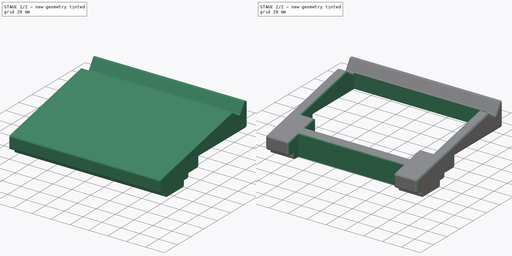
[diagram: build sequence overview — one tinted view per stage of 2, left to right]
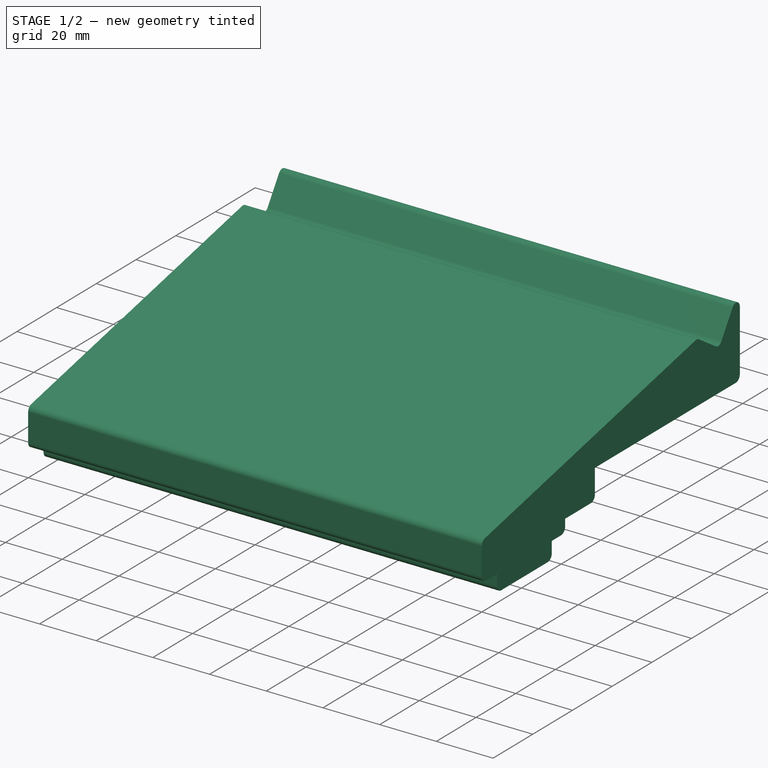
[diagram: stage 1 of 2 — iso view after this stage's code; geometry added in this stage tinted green]
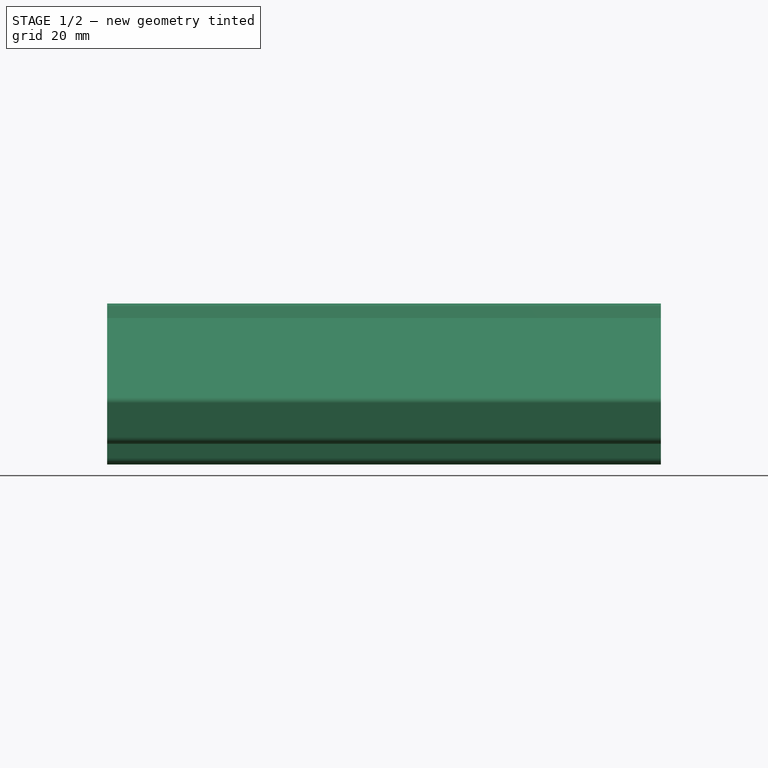
[diagram: stage 1 of 2 — front view after this stage's code; geometry added in this stage tinted green]
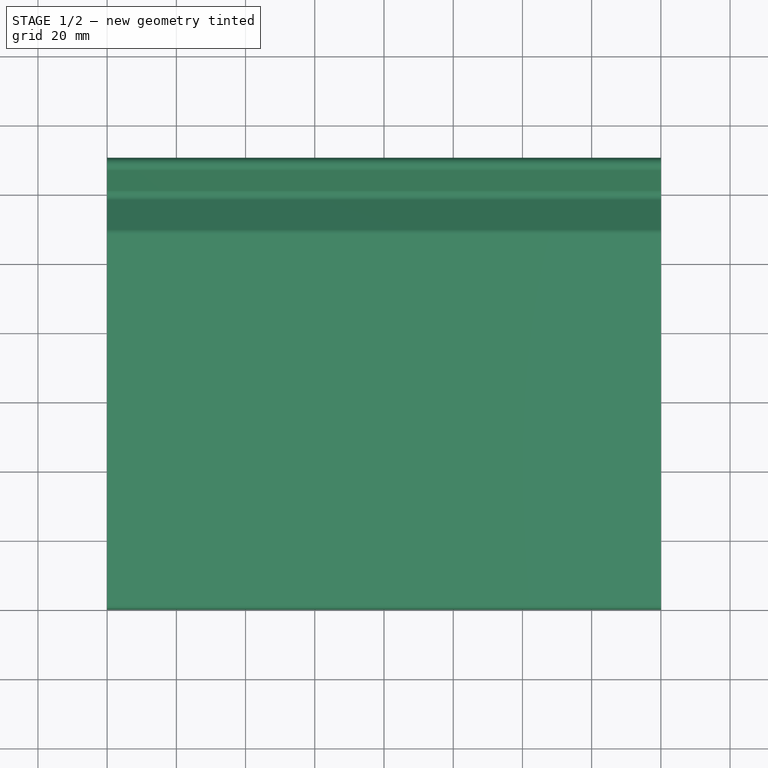
[diagram: stage 1 of 2 — top view after this stage's code; geometry added in this stage tinted green]
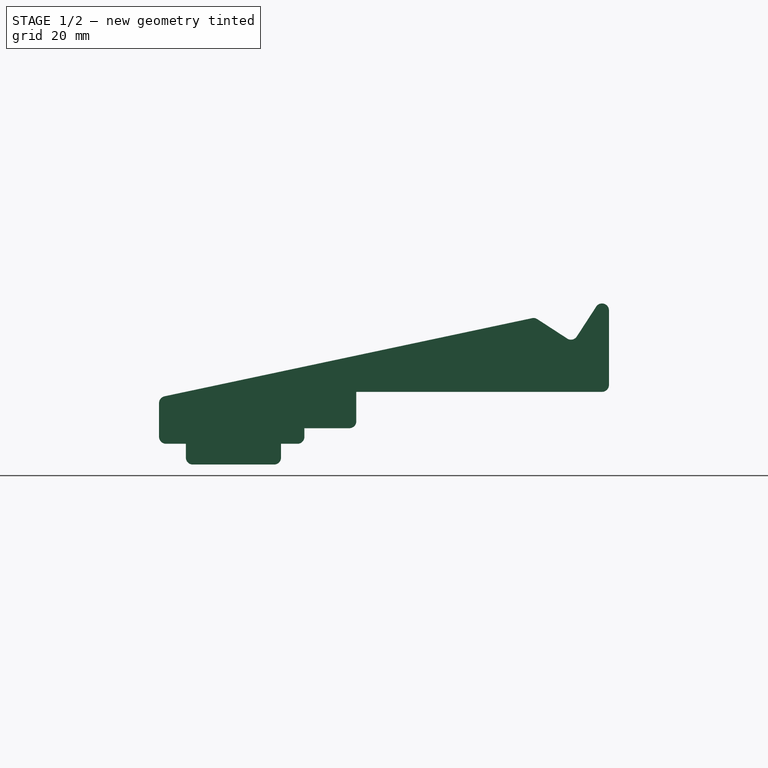
[diagram: stage 1 of 2 — right view after this stage's code; geometry added in this stage tinted green]
FCSTD DOCUMENT  (FreeCAD 0.21R33771 (Git))
Label: KeyboardMiddleSupport
License: All rights reserved
LicenseURL: http://en.wikipedia.org/wiki/All_rights_reserved
objects: Sketcher::SketchObject×2, PartDesign::Fillet×2, PartDesign::Pad×1, PartDesign::Pocket×1, PartDesign::Body×1
note: 11 computed .brp shape members not serialized (recipe doc carries the construction recipe); baked Part::Feature solids carry a one-line shape summary decoded from their .brp

FEATURE [Sketcher::SketchObject] Sketch
  FullyConstrained = true
  MapMode = 5
  Placement = pos=(0,0,0) rot=(0.57735,0.57735,0.57735;2.0944rad)
  Support = -> [YZ_Plane]
  sketch-geometry (17):
    g0: LineSegment StartX=0 StartY=0 StartZ=0 EndX=0 EndY=13.3843 EndZ=0
    g1: LineSegment StartX=130 StartY=38.5468 StartZ=0 EndX=130 EndY=15 EndZ=0
    g2: LineSegment StartX=130 StartY=15 StartZ=0 EndX=57 EndY=15 EndZ=0
    g3: LineSegment StartX=57 StartY=15 StartZ=0 EndX=57 EndY=4.5 EndZ=0
    g4: LineSegment StartX=57 StartY=4.5 StartZ=0 EndX=42 EndY=4.5 EndZ=0
    g5: LineSegment StartX=42 StartY=4.5 StartZ=0 EndX=42 EndY=0 EndZ=0
    g6: LineSegment StartX=42 StartY=0 StartZ=0 EndX=35.25 EndY=0 EndZ=0
    g7: LineSegment StartX=35.25 StartY=0 StartZ=0 EndX=35.25 EndY=-6 EndZ=0
    g8: LineSegment StartX=35.25 StartY=-6 StartZ=0 EndX=7.75 EndY=-6 EndZ=0
    g9: LineSegment StartX=7.75 StartY=-6 StartZ=0 EndX=7.75 EndY=0 EndZ=0
    g10: LineSegment StartX=7.75 StartY=0 StartZ=0 EndX=0 EndY=0 EndZ=0
    g11: LineSegment StartX=0 StartY=13.3843 StartZ=0 EndX=108.604 EndY=36.4687 EndZ=0
    g12: LineSegment StartX=57 StartY=15 StartZ=0 EndX=57 EndY=25.5 EndZ=0
    g13: ArcOfCircle CenterX=128 CenterY=38.5468 CenterZ=0 NormalX=0 NormalY=0 NormalZ=1 AngleXU=0 Radius=2 StartAngle=1e-16 EndAngle=2.56563
    g14: LineSegment StartX=108.604 StartY=36.4687 StartZ=0 EndX=117.942 EndY=30.4039 EndZ=0
    g15: ArcOfCircle CenterX=119.032 CenterY=32.0812 CenterZ=0 NormalX=0 NormalY=0 NormalZ=1 AngleXU=0 Radius=2 StartAngle=4.13643 EndAngle=5.70723
    g16: LineSegment StartX=120.709 StartY=30.992 StartZ=0 EndX=126.323 EndY=39.6361 EndZ=0
  constraints (49):
    c: Coincident(g-1,g0)
    c: PointOnObject(g0,g-2)
    c: Coincident(g0,g11)
    c: Vertical(g1)
    c: Coincident(g1,g2)
    c: Horizontal(g2)
    c: Coincident(g2,g3)
    c: Vertical(g3)
    c: Coincident(g3,g4)
    c: Horizontal(g4)
    c: Coincident(g4,g5)
    c: Coincident(g5,g6)
    c: Horizontal(g6)
    c: Coincident(g6,g7)
    c: Vertical(g7)
    c: Coincident(g7,g8)
    c: Horizontal(g8)
    c: Coincident(g8,g9)
    c: PointOnObject(g9,g-1)
    c: Vertical(g9)
    c: Coincident(g9,g10)
    c: Coincident(g10,g0)
    c: PointOnObject(g6,g-1)
    c: Vertical(g5)
    c: DistanceX(g8,g8) = 27.5
    c: DistanceX(g10,g10) = 7.75
    c: DistanceY(g7,g7) = 6
    c: DistanceX(g6,g6) = 6.75
    c: DistanceY(g5,g5) = 4.5
    c: DistanceX(g4,g4) = 15
    c: DistanceY(g3,g3) = 10.5
    c: Angle(g10,g11) = 0.20944
    c: PointOnObject(g12,g11)
    c: Vertical(g12)
    c: Coincident(g2,g12)
    c: DistanceY(g12,g12) = 10.5
    c: DistanceX(g2,g2) = 73
    c: Tangent(g11,g13)
    c: Tangent(g15,g14) = -1.5708
    c: Horizontal(g13,g1)
    c: Distance(g11,g13) = 18
    c: Diameter(g13) = 4
    c: Coincident(g13,g1)
    c: Diameter(g15) = 4
    c: Angle(g11,g14) = 2.35619
    c: Coincident(g14,g11)
    c: Tangent(g16,g15) = -1.5708
    c: Tangent(g16,g13) = 1.5708
    c: Angle(g11,g16) = 0.785398
FEATURE [PartDesign::Pad] Pad
  Direction = (1,-2e-16,3e-16)
  Length = 160
  Length2 = 10
  Placement = pos=(0,0,0) rot=(1,1,1;2.0944rad)
  Profile = -> Sketch
  ReferenceAxis = -> Sketch [N_Axis]
  Type = 0
FEATURE [PartDesign::Fillet] Fillet
  Base = -> Pad [Edge14,Edge20,Edge32,Edge35,Edge1,Edge2,Edge29,Edge8,Edge23]
  BaseFeature = -> Pad
  Placement = pos=(0,0,0) rot=(1,1,1;2.0944rad)
  Radius = 2
  SupportTransform = false
  UseAllEdges = false
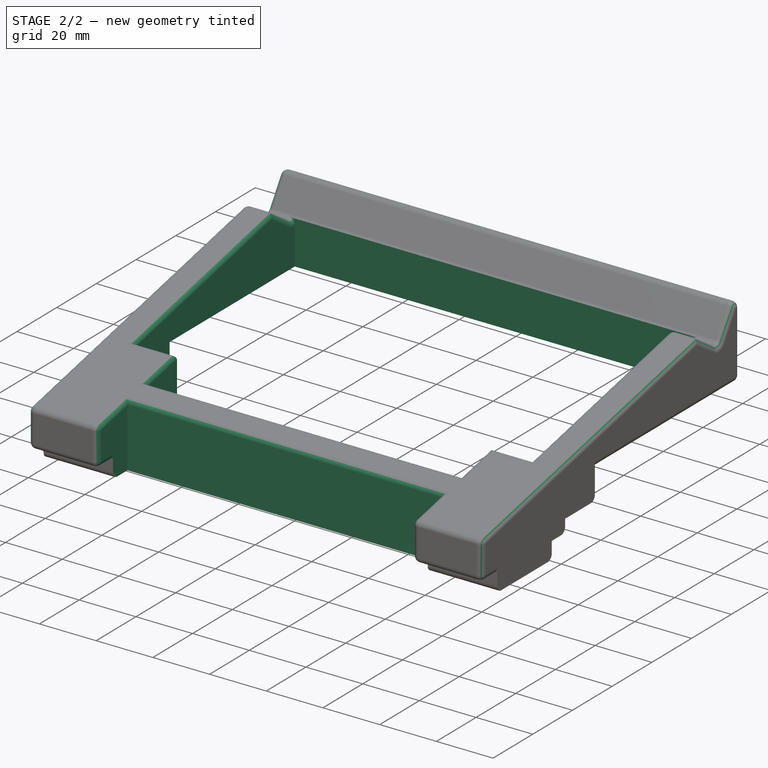
[diagram: stage 2 of 2 — iso view after this stage's code; geometry added in this stage tinted green]
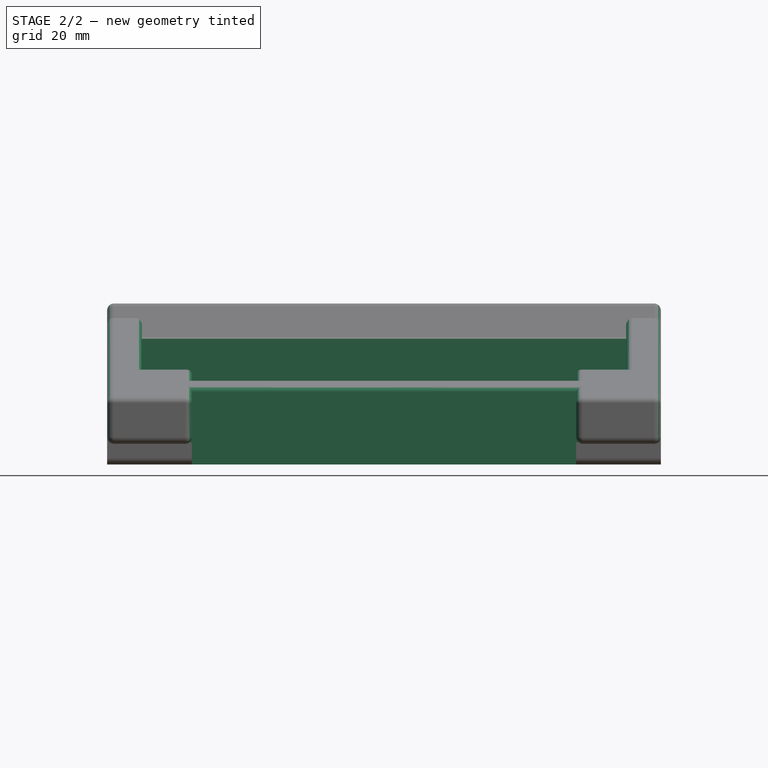
[diagram: stage 2 of 2 — front view after this stage's code; geometry added in this stage tinted green]
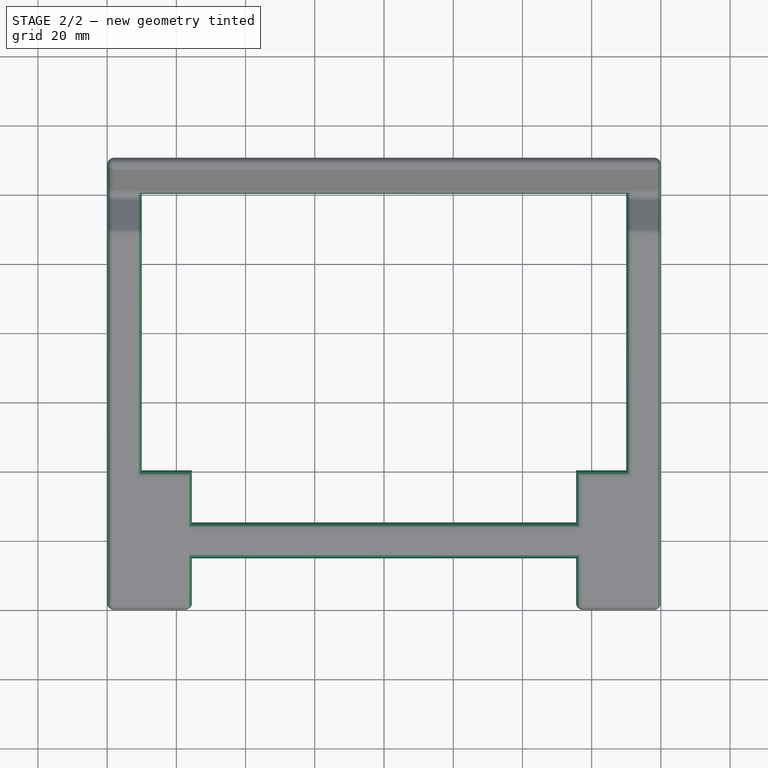
[diagram: stage 2 of 2 — top view after this stage's code; geometry added in this stage tinted green]
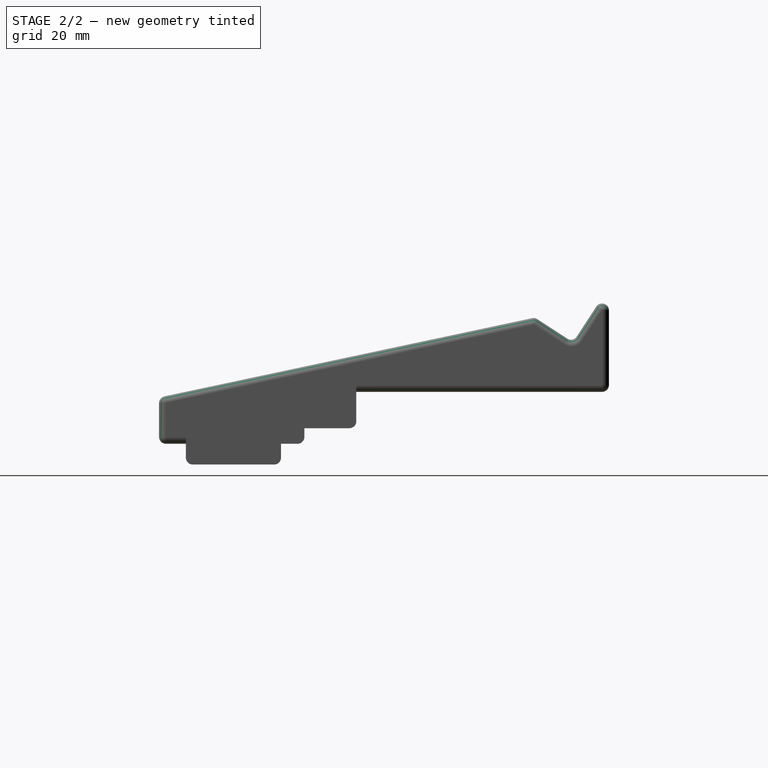
[diagram: stage 2 of 2 — right view after this stage's code; geometry added in this stage tinted green]
FEATURE [Sketcher::SketchObject] Sketch001  label="TopPocketSketch"
  ExternalGeometry = -> [Pad]
  FullyConstrained = true
  MapMode = 5
  Placement = pos=(-5.8e-15,8.3e-15,15) rot=(0.707107,0.707107,0;3.14159rad)
  Support = -> [Pad]
  sketch-geometry (14):
    g0: LineSegment StartX=25 StartY=135.5 StartZ=0 EndX=25 EndY=24.5 EndZ=0
    g1: LineSegment StartX=25 StartY=24.5 StartZ=0 EndX=40 EndY=24.5 EndZ=0
    g2: LineSegment StartX=40 StartY=24.5 StartZ=0 EndX=40 EndY=10 EndZ=0
    g3: LineSegment StartX=40 StartY=10 StartZ=0 EndX=120 EndY=10 EndZ=0
    g4: LineSegment StartX=120 StartY=10 StartZ=0 EndX=120 EndY=150 EndZ=0
    g5: LineSegment StartX=120 StartY=150 StartZ=0 EndX=40 EndY=150 EndZ=0
    g6: LineSegment StartX=40 StartY=150 StartZ=0 EndX=40 EndY=135.5 EndZ=0
    g7: LineSegment StartX=40 StartY=135.5 StartZ=0 EndX=25 EndY=135.5 EndZ=0
    g8: LineSegment StartX=0 StartY=135.5 StartZ=0 EndX=15 EndY=135.5 EndZ=0
    g9: LineSegment StartX=15 StartY=135.5 StartZ=0 EndX=15 EndY=24.5 EndZ=0
    g10: LineSegment StartX=15 StartY=24.5 StartZ=0 EndX=0 EndY=24.5 EndZ=0
    g11: LineSegment StartX=0 StartY=24.5 StartZ=0 EndX=0 EndY=135.5 EndZ=0
    g12: LineSegment StartX=120 StartY=150 StartZ=0 EndX=130 EndY=160 EndZ=0
    g13: LineSegment StartX=120 StartY=10 StartZ=0 EndX=130 EndY=-1.8e-15 EndZ=0
  constraints (40):
    c: Vertical(g0)
    c: Horizontal(g1)
    c: Coincident(g1,g2)
    c: Vertical(g2)
    c: Coincident(g2,g3)
    c: Horizontal(g3)
    c: Coincident(g3,g4)
    c: Vertical(g4)
    c: Coincident(g4,g5)
    c: Horizontal(g5)
    c: Coincident(g5,g6)
    c: Vertical(g6)
    c: Coincident(g6,g7)
    c: Coincident(g7,g0)
    c: Horizontal(g7)
    c: Vertical(g6,g1)
    c: DistanceY(g0,g0) = 111
    c: Equal(g6,g2)
    c: Coincident(g0,g1)
    c: Coincident(g8,g9)
    c: Coincident(g9,g10)
    c: Coincident(g10,g11)
    c: Coincident(g11,g8)
    c: Horizontal(g8)
    c: Horizontal(g10)
    c: Vertical(g9)
    c: Vertical(g11)
    c: Horizontal(g0,g8)
    c: Horizontal(g0,g9)
    c: Coincident(g12,g4)
    c: Coincident(g12,g-3)
    c: Coincident(g13,g3)
    c: Coincident(g13,g-3)
    c: Equal(g12,g13)
    c: DistanceX(g3,g13) = 10
    c: DistanceY(g13,g3) = 10
    c: PointOnObject(g10,g-2)
    c: DistanceX(g8,g0) = 10
    c: DistanceX(g8,g6) = 40
    c: Equal(g10,g1)
FEATURE [PartDesign::Pocket] Pocket
  BaseFeature = -> Fillet
  Direction = (-4e-16,6e-16,1)
  Length = 5
  Length2 = 5
  Midplane = true
  Placement = pos=(0,0,0) rot=(1,1,1;2.0944rad)
  Profile = -> Sketch001
  ReferenceAxis = -> Sketch001 [N_Axis]
  Type = 1
FEATURE [PartDesign::Fillet] Fillet001
  Base = -> Pocket [Edge16,Edge41,Edge82,Edge76,Edge79,Edge86,Edge96,Edge136,Edge78,Edge80,Edge81,Edge77]
  BaseFeature = -> Pocket
  Placement = pos=(0,0,0) rot=(1,1,1;2.0944rad)
  Radius = 2
  SupportTransform = false
  UseAllEdges = false
FEATURE [PartDesign::Body] Body  label="KeyboardSupportBody"
  Group = -> [Sketch,Pad,Fillet,Sketch001,Pocket,Fillet001]
  Origin = -> Origin
  Tip = -> Fillet001
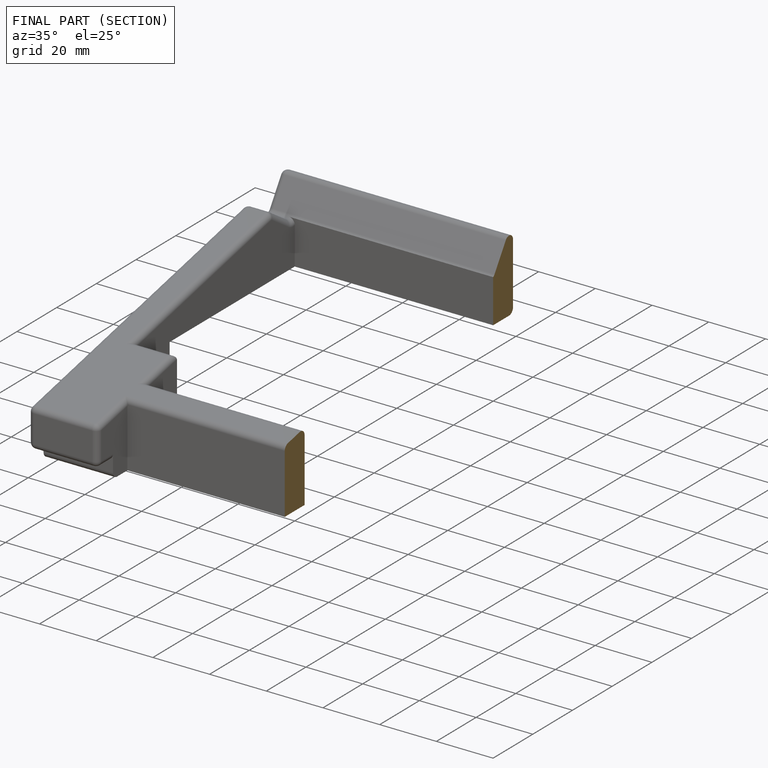
[diagram: finished part — half-section view (interior)]
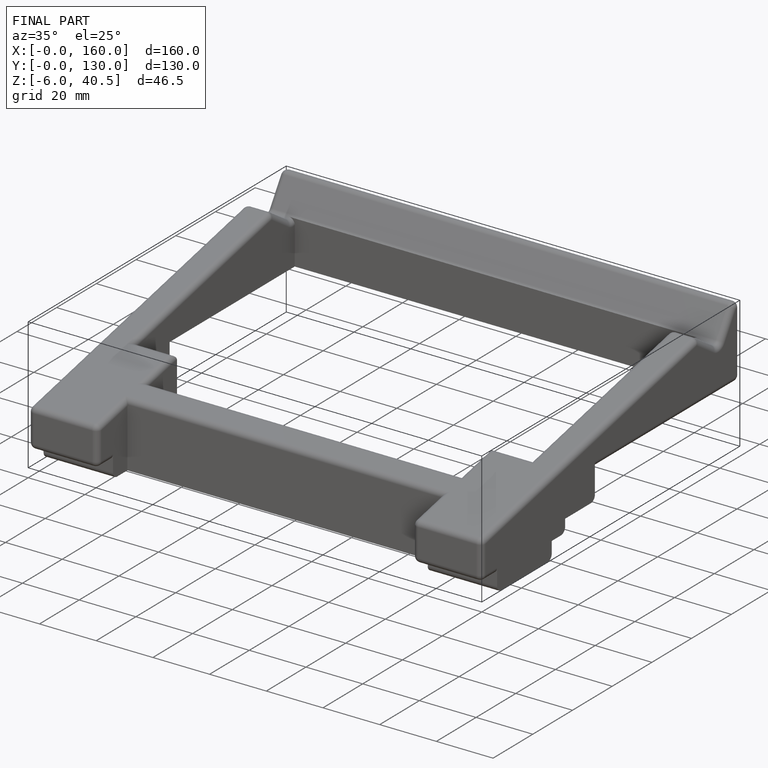
[diagram: finished part — iso view with bounding-box wireframe]
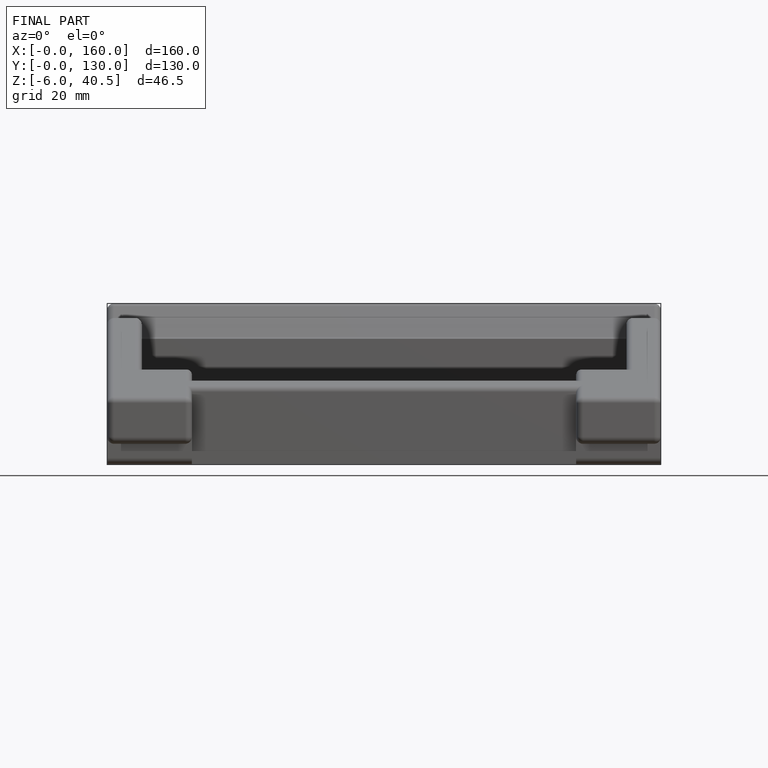
[diagram: finished part — front view with bounding-box wireframe]
